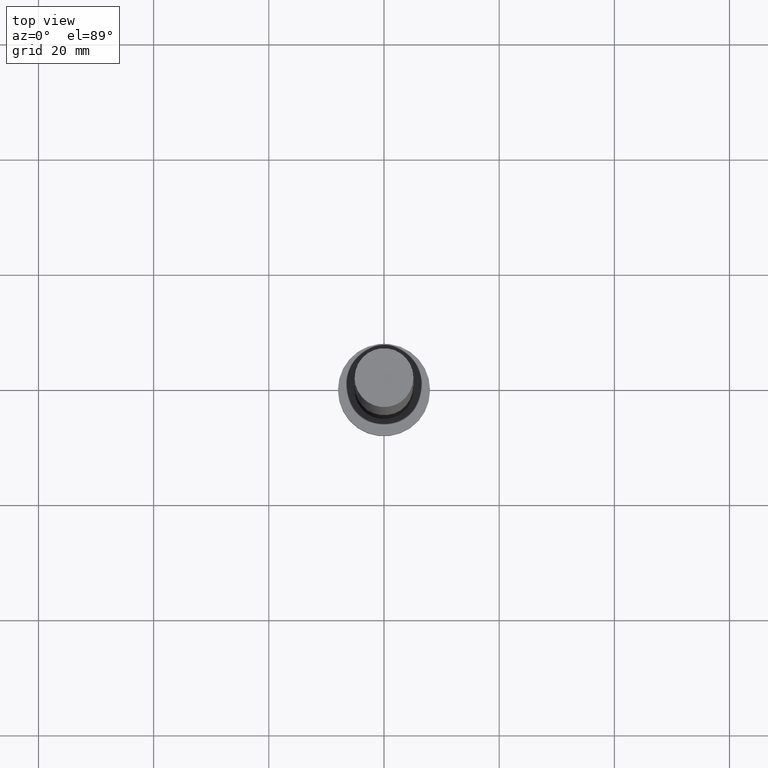
[diagram: clean part render]
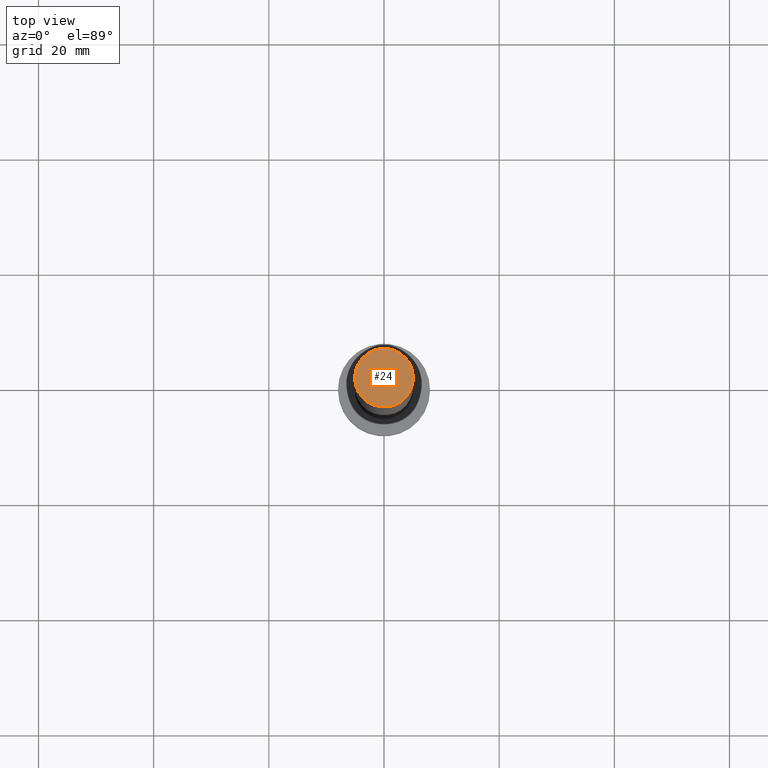
[diagram: same view with one face highlighted and labeled with its STEP entity id]
A machine part, top view. The second image highlights one B-rep face of the part: STEP entity #24.
In plain terms, the highlighted planar face has unit normal (0, 0, 1).
Its self-contained STEP definition (entity closure, byte-faithful):
#2 = ORIENTED_EDGE ( 'NONE', *, *, #114, .T. ) ;
#3 = DIRECTION ( 'NONE',  ( 0.000000000000000000, 0.000000000000000000, 1.000000000000000000 ) ) ;
#4 = FACE_OUTER_BOUND ( 'NONE', #227, .T. ) ;
#8 = DIRECTION ( 'NONE',  ( 0.000000000000000000, 0.000000000000000000, 1.000000000000000000 ) ) ;
#12 = CIRCLE ( 'NONE', #103, 5.099999999999999645 ) ;
#17 = ORIENTED_EDGE ( 'NONE', *, *, #170, .T. ) ;
#24 = ADVANCED_FACE ( 'NONE', ( #4 ), #191, .T. ) ;
#40 = VERTEX_POINT ( 'NONE', #89 ) ;
#43 = CARTESIAN_POINT ( 'NONE',  ( -5.099999999999999645, 0.000000000000000000, 125.0000000000000000 ) ) ;
#78 = DIRECTION ( 'NONE',  ( 1.000000000000000000, 0.000000000000000000, 0.000000000000000000 ) ) ;
#89 = CARTESIAN_POINT ( 'NONE',  ( 5.099999999999999645, 6.245698675651500839E-16, 125.0000000000000000 ) ) ;
#94 = DIRECTION ( 'NONE',  ( 0.000000000000000000, 0.000000000000000000, 1.000000000000000000 ) ) ;
#103 = AXIS2_PLACEMENT_3D ( 'NONE', #233, #94, #78 ) ;
#108 = AXIS2_PLACEMENT_3D ( 'NONE', #148, #8, #145 ) ;
#114 = EDGE_CURVE ( 'NONE', #156, #40, #12, .T. ) ;
#145 = DIRECTION ( 'NONE',  ( 1.000000000000000000, 0.000000000000000000, -0.000000000000000000 ) ) ;
#148 = CARTESIAN_POINT ( 'NONE',  ( 0.000000000000000000, 0.000000000000000000, 125.0000000000000000 ) ) ;
#156 = VERTEX_POINT ( 'NONE', #43 ) ;
#170 = EDGE_CURVE ( 'NONE', #40, #156, #230, .T. ) ;
#186 = DIRECTION ( 'NONE',  ( 1.000000000000000000, 0.000000000000000000, 0.000000000000000000 ) ) ;
#191 = PLANE ( 'NONE',  #108 ) ;
#214 = AXIS2_PLACEMENT_3D ( 'NONE', #228, #3, #186 ) ;
#227 = EDGE_LOOP ( 'NONE', ( #2, #17 ) ) ;
#228 = CARTESIAN_POINT ( 'NONE',  ( 0.000000000000000000, 0.000000000000000000, 125.0000000000000000 ) ) ;
#230 = CIRCLE ( 'NONE', #214, 5.099999999999999645 ) ;
#233 = CARTESIAN_POINT ( 'NONE',  ( 0.000000000000000000, 0.000000000000000000, 125.0000000000000000 ) ) ;